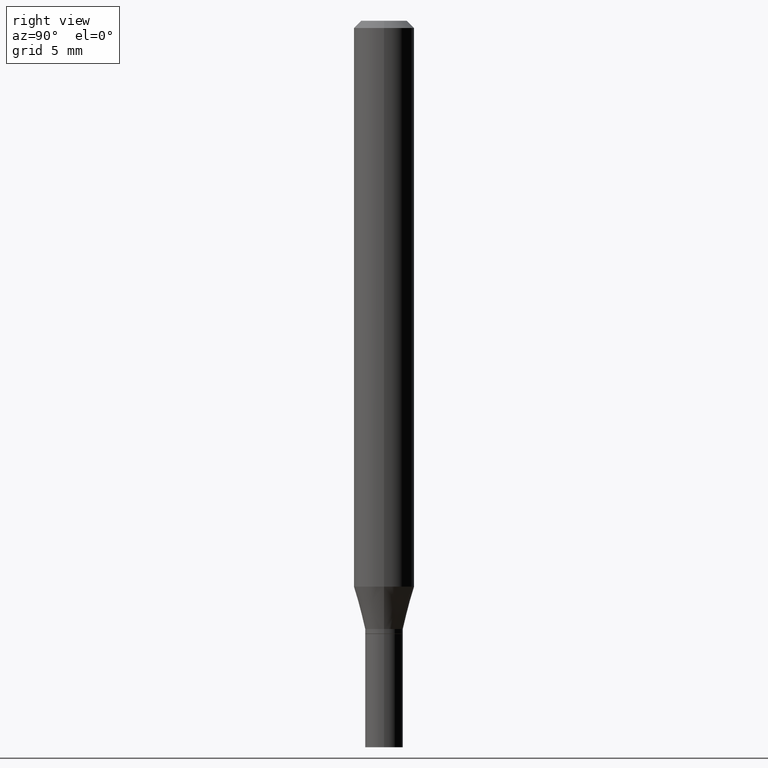
[diagram: clean part render]
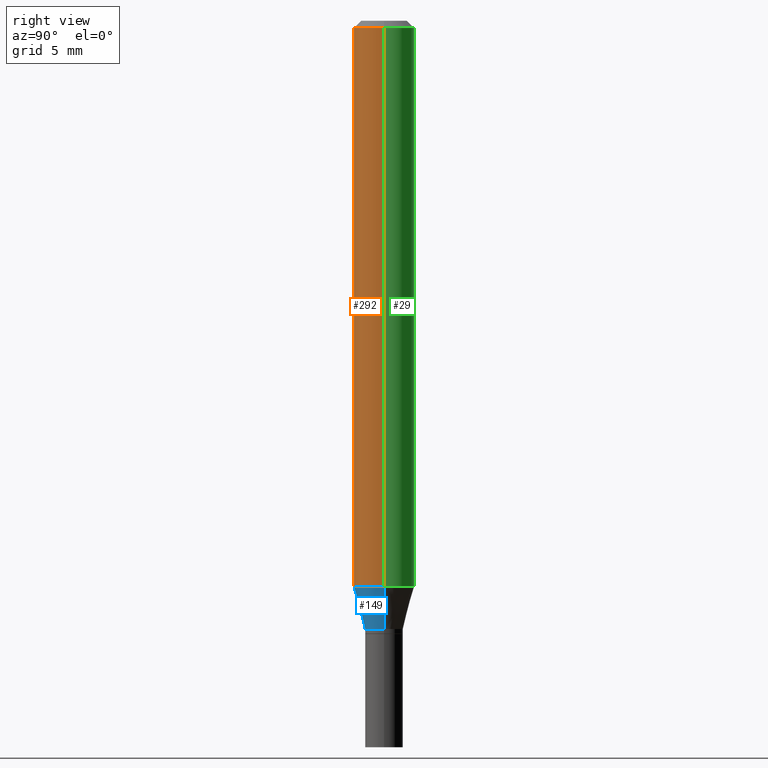
[diagram: same view with three faces highlighted in distinct colors, each labeled with its STEP entity id]
A machine part, right view with three faces highlighted in distinct colors.
Their STEP definitions:

[orange] entity #292 — the highlighted cylindrical surface (edge-blend (fillet) strip) has radius 1.5875 mm, axis along (-0, 0, 1).
#9 = CARTESIAN_POINT ( 'NONE',  ( 0.06250000000000000000, -4.364351673553916694E-16, 3.047610484872459871E-30 ) ) ;
#45 = DIRECTION ( 'NONE',  ( -2.445468806185136597E-29, 3.491481338843145583E-15, 1.000000000000000000 ) ) ;
#62 = CARTESIAN_POINT ( 'NONE',  ( 3.668203209277705088E-31, -5.237222008264718399E-17, -0.01499999999999999944 ) ) ;
#71 = EDGE_CURVE ( 'NONE', #293, #158, #120, .T. ) ;
#76 = CARTESIAN_POINT ( 'NONE',  ( -0.06250000000000000000, -1.621640148419421755E-15, -0.01499999999999999944 ) ) ;
#78 = FACE_OUTER_BOUND ( 'NONE', #461, .T. ) ;
#85 = ORIENTED_EDGE ( 'NONE', *, *, #459, .F. ) ;
#94 = DIRECTION ( 'NONE',  ( -2.445468806185136597E-29, 3.491481338843145583E-15, 1.000000000000000000 ) ) ;
#102 = DIRECTION ( 'NONE',  ( -2.445468806185136877E-29, 3.491481338843145188E-15, 1.000000000000000000 ) ) ;
#115 = VERTEX_POINT ( 'NONE', #198 ) ;
#120 = CIRCLE ( 'NONE', #387, 0.06250000000000000000 ) ;
#121 = AXIS2_PLACEMENT_3D ( 'NONE', #62, #176, #138 ) ;
#125 = DIRECTION ( 'NONE',  ( 1.000000000000000000, -6.982962677686266711E-15, 4.876176775795935793E-29 ) ) ;
#135 = LINE ( 'NONE', #466, #191 ) ;
#138 = DIRECTION ( 'NONE',  ( 1.000000000000000000, -6.982962677686266711E-15, 0.000000000000000000 ) ) ;
#158 = VERTEX_POINT ( 'NONE', #206 ) ;
#159 = CYLINDRICAL_SURFACE ( 'NONE', #418, 0.06250000000000000000 ) ;
#176 = DIRECTION ( 'NONE',  ( -2.445468806185136597E-29, 3.491481338843145583E-15, 1.000000000000000000 ) ) ;
#191 = VECTOR ( 'NONE', #102, 39.37007874015748143 ) ;
#198 = CARTESIAN_POINT ( 'NONE',  ( 0.06250000000000000000, -4.888073874380388472E-16, -0.01499999999999999944 ) ) ;
#206 = CARTESIAN_POINT ( 'NONE',  ( 0.06250000000000000000, -4.515521663811713727E-15, -1.168296806022131262 ) ) ;
#213 = EDGE_CURVE ( 'NONE', #335, #115, #298, .T. ) ;
#231 = CARTESIAN_POINT ( 'NONE',  ( -0.06250000000000000000, -3.634997286606259442E-15, -1.168296806022131262 ) ) ;
#243 = DIRECTION ( 'NONE',  ( 1.000000000000000000, -6.982962677686262766E-15, 0.000000000000000000 ) ) ;
#267 = EDGE_CURVE ( 'NONE', #158, #115, #275, .T. ) ;
#270 = VECTOR ( 'NONE', #344, 39.37007874015748143 ) ;
#275 = LINE ( 'NONE', #9, #270 ) ;
#292 = ADVANCED_FACE ( 'NONE', ( #78 ), #159, .T. ) ;
#293 = VERTEX_POINT ( 'NONE', #231 ) ;
#298 = CIRCLE ( 'NONE', #121, 0.06250000000000000000 ) ;
#306 = CARTESIAN_POINT ( 'NONE',  ( 0.000000000000000000, 0.000000000000000000, 0.000000000000000000 ) ) ;
#309 = ORIENTED_EDGE ( 'NONE', *, *, #71, .T. ) ;
#335 = VERTEX_POINT ( 'NONE', #76 ) ;
#344 = DIRECTION ( 'NONE',  ( -2.445468806185136877E-29, 3.491481338843145188E-15, 1.000000000000000000 ) ) ;
#355 = CARTESIAN_POINT ( 'NONE',  ( 2.857033395492849215E-29, -4.079086496456321269E-15, -1.168296806022131262 ) ) ;
#387 = AXIS2_PLACEMENT_3D ( 'NONE', #355, #94, #243 ) ;
#418 = AXIS2_PLACEMENT_3D ( 'NONE', #306, #45, #125 ) ;
#419 = ORIENTED_EDGE ( 'NONE', *, *, #267, .T. ) ;
#459 = EDGE_CURVE ( 'NONE', #293, #335, #135, .T. ) ;
#461 = EDGE_LOOP ( 'NONE', ( #85, #309, #419, #462 ) ) ;
#462 = ORIENTED_EDGE ( 'NONE', *, *, #213, .F. ) ;
#466 = CARTESIAN_POINT ( 'NONE',  ( -0.06250000000000000000, 4.440892098500626162E-16, -3.074334431409316114E-30 ) ) ;

[blue] entity #149 — the highlighted conical surface has half-angle 15 deg.
#1 = VERTEX_POINT ( 'NONE', #130 ) ;
#24 = AXIS2_PLACEMENT_3D ( 'NONE', #425, #279, #423 ) ;
#27 = DIRECTION ( 'NONE',  ( 0.2588190451025206840, 1.565188264969626504E-15, 0.9659258262890682012 ) ) ;
#64 = CARTESIAN_POINT ( 'NONE',  ( 0.03899999999999990280, -4.657636106016756115E-15, -1.256000000000000227 ) ) ;
#71 = EDGE_CURVE ( 'NONE', #293, #158, #120, .T. ) ;
#94 = DIRECTION ( 'NONE',  ( -2.445468806185136597E-29, 3.491481338843145583E-15, 1.000000000000000000 ) ) ;
#95 = LINE ( 'NONE', #64, #250 ) ;
#107 = CARTESIAN_POINT ( 'NONE',  ( -0.03899999999999990280, -4.108188894640553562E-15, -1.256000000000000227 ) ) ;
#114 = AXIS2_PLACEMENT_3D ( 'NONE', #246, #277, #274 ) ;
#120 = CIRCLE ( 'NONE', #387, 0.06250000000000000000 ) ;
#126 = EDGE_CURVE ( 'NONE', #257, #1, #261, .T. ) ;
#127 = FACE_OUTER_BOUND ( 'NONE', #444, .T. ) ;
#130 = CARTESIAN_POINT ( 'NONE',  ( 0.03899999999999990280, -4.657636106016756115E-15, -1.256000000000000227 ) ) ;
#149 = ADVANCED_FACE ( 'NONE', ( #127 ), #443, .T. ) ;
#158 = VERTEX_POINT ( 'NONE', #206 ) ;
#170 = VECTOR ( 'NONE', #364, 39.37007874015748854 ) ;
#174 = EDGE_CURVE ( 'NONE', #1, #158, #95, .T. ) ;
#206 = CARTESIAN_POINT ( 'NONE',  ( 0.06250000000000000000, -4.515521663811713727E-15, -1.168296806022131262 ) ) ;
#216 = LINE ( 'NONE', #107, #170 ) ;
#228 = ORIENTED_EDGE ( 'NONE', *, *, #71, .F. ) ;
#231 = CARTESIAN_POINT ( 'NONE',  ( -0.06250000000000000000, -3.634997286606259442E-15, -1.168296806022131262 ) ) ;
#237 = EDGE_CURVE ( 'NONE', #257, #293, #216, .T. ) ;
#243 = DIRECTION ( 'NONE',  ( 1.000000000000000000, -6.982962677686262766E-15, 0.000000000000000000 ) ) ;
#246 = CARTESIAN_POINT ( 'NONE',  ( 3.071508820568532122E-29, -4.385300561586992092E-15, -1.256000000000000227 ) ) ;
#250 = VECTOR ( 'NONE', #27, 39.37007874015748854 ) ;
#257 = VERTEX_POINT ( 'NONE', #409 ) ;
#261 = CIRCLE ( 'NONE', #24, 0.03899999999999990280 ) ;
#274 = DIRECTION ( 'NONE',  ( 1.000000000000000000, -6.982962677686275388E-15, 0.000000000000000000 ) ) ;
#277 = DIRECTION ( 'NONE',  ( -2.445468806185136597E-29, 3.491481338843145583E-15, 1.000000000000000000 ) ) ;
#279 = DIRECTION ( 'NONE',  ( -2.445468806185136597E-29, 3.491481338843145583E-15, 1.000000000000000000 ) ) ;
#293 = VERTEX_POINT ( 'NONE', #231 ) ;
#339 = ORIENTED_EDGE ( 'NONE', *, *, #237, .F. ) ;
#355 = CARTESIAN_POINT ( 'NONE',  ( 2.857033395492849215E-29, -4.079086496456321269E-15, -1.168296806022131262 ) ) ;
#362 = ORIENTED_EDGE ( 'NONE', *, *, #174, .T. ) ;
#364 = DIRECTION ( 'NONE',  ( -0.2588190451025206840, 5.211531920934545520E-15, 0.9659258262890682012 ) ) ;
#387 = AXIS2_PLACEMENT_3D ( 'NONE', #355, #94, #243 ) ;
#405 = ORIENTED_EDGE ( 'NONE', *, *, #126, .T. ) ;
#409 = CARTESIAN_POINT ( 'NONE',  ( -0.03899999999999990280, -3.871593090623406502E-15, -1.256000000000000227 ) ) ;
#423 = DIRECTION ( 'NONE',  ( 1.000000000000000000, -6.982962677686275388E-15, 0.000000000000000000 ) ) ;
#425 = CARTESIAN_POINT ( 'NONE',  ( 3.071508820568532122E-29, -4.385300561586992092E-15, -1.256000000000000227 ) ) ;
#443 = CONICAL_SURFACE ( 'NONE', #114, 0.03899999999999990280, 0.2617993877991494078 ) ;
#444 = EDGE_LOOP ( 'NONE', ( #339, #405, #362, #228 ) ) ;

[green] entity #29 — the highlighted cylindrical surface (edge-blend (fillet) strip) has radius 1.5875 mm, axis along (-0, 0, 1).
#9 = CARTESIAN_POINT ( 'NONE',  ( 0.06250000000000000000, -4.364351673553916694E-16, 3.047610484872459871E-30 ) ) ;
#12 = DIRECTION ( 'NONE',  ( -2.445468806185136597E-29, 3.491481338843145583E-15, 1.000000000000000000 ) ) ;
#17 = CIRCLE ( 'NONE', #397, 0.06250000000000000000 ) ;
#29 = ADVANCED_FACE ( 'NONE', ( #282 ), #394, .T. ) ;
#50 = EDGE_CURVE ( 'NONE', #158, #293, #363, .T. ) ;
#69 = EDGE_LOOP ( 'NONE', ( #244, #433, #122, #148 ) ) ;
#76 = CARTESIAN_POINT ( 'NONE',  ( -0.06250000000000000000, -1.621640148419421755E-15, -0.01499999999999999944 ) ) ;
#86 = CARTESIAN_POINT ( 'NONE',  ( 3.668203209277705088E-31, -5.237222008264718399E-17, -0.01499999999999999944 ) ) ;
#90 = AXIS2_PLACEMENT_3D ( 'NONE', #238, #453, #276 ) ;
#102 = DIRECTION ( 'NONE',  ( -2.445468806185136877E-29, 3.491481338843145188E-15, 1.000000000000000000 ) ) ;
#115 = VERTEX_POINT ( 'NONE', #198 ) ;
#122 = ORIENTED_EDGE ( 'NONE', *, *, #359, .F. ) ;
#134 = DIRECTION ( 'NONE',  ( 1.000000000000000000, -6.982962677686266711E-15, 4.876176775795935793E-29 ) ) ;
#135 = LINE ( 'NONE', #466, #191 ) ;
#148 = ORIENTED_EDGE ( 'NONE', *, *, #267, .F. ) ;
#158 = VERTEX_POINT ( 'NONE', #206 ) ;
#191 = VECTOR ( 'NONE', #102, 39.37007874015748143 ) ;
#198 = CARTESIAN_POINT ( 'NONE',  ( 0.06250000000000000000, -4.888073874380388472E-16, -0.01499999999999999944 ) ) ;
#206 = CARTESIAN_POINT ( 'NONE',  ( 0.06250000000000000000, -4.515521663811713727E-15, -1.168296806022131262 ) ) ;
#231 = CARTESIAN_POINT ( 'NONE',  ( -0.06250000000000000000, -3.634997286606259442E-15, -1.168296806022131262 ) ) ;
#234 = DIRECTION ( 'NONE',  ( 1.000000000000000000, -6.982962677686266711E-15, 0.000000000000000000 ) ) ;
#238 = CARTESIAN_POINT ( 'NONE',  ( 2.857033395492849215E-29, -4.079086496456321269E-15, -1.168296806022131262 ) ) ;
#244 = ORIENTED_EDGE ( 'NONE', *, *, #50, .T. ) ;
#267 = EDGE_CURVE ( 'NONE', #158, #115, #275, .T. ) ;
#270 = VECTOR ( 'NONE', #344, 39.37007874015748143 ) ;
#275 = LINE ( 'NONE', #9, #270 ) ;
#276 = DIRECTION ( 'NONE',  ( 1.000000000000000000, -6.982962677686262766E-15, 0.000000000000000000 ) ) ;
#282 = FACE_OUTER_BOUND ( 'NONE', #69, .T. ) ;
#293 = VERTEX_POINT ( 'NONE', #231 ) ;
#321 = DIRECTION ( 'NONE',  ( -2.445468806185136597E-29, 3.491481338843145583E-15, 1.000000000000000000 ) ) ;
#323 = CARTESIAN_POINT ( 'NONE',  ( 0.000000000000000000, 0.000000000000000000, 0.000000000000000000 ) ) ;
#335 = VERTEX_POINT ( 'NONE', #76 ) ;
#344 = DIRECTION ( 'NONE',  ( -2.445468806185136877E-29, 3.491481338843145188E-15, 1.000000000000000000 ) ) ;
#359 = EDGE_CURVE ( 'NONE', #115, #335, #17, .T. ) ;
#363 = CIRCLE ( 'NONE', #90, 0.06250000000000000000 ) ;
#376 = AXIS2_PLACEMENT_3D ( 'NONE', #323, #321, #134 ) ;
#394 = CYLINDRICAL_SURFACE ( 'NONE', #376, 0.06250000000000000000 ) ;
#397 = AXIS2_PLACEMENT_3D ( 'NONE', #86, #12, #234 ) ;
#433 = ORIENTED_EDGE ( 'NONE', *, *, #459, .T. ) ;
#453 = DIRECTION ( 'NONE',  ( -2.445468806185136597E-29, 3.491481338843145583E-15, 1.000000000000000000 ) ) ;
#459 = EDGE_CURVE ( 'NONE', #293, #335, #135, .T. ) ;
#466 = CARTESIAN_POINT ( 'NONE',  ( -0.06250000000000000000, 4.440892098500626162E-16, -3.074334431409316114E-30 ) ) ;